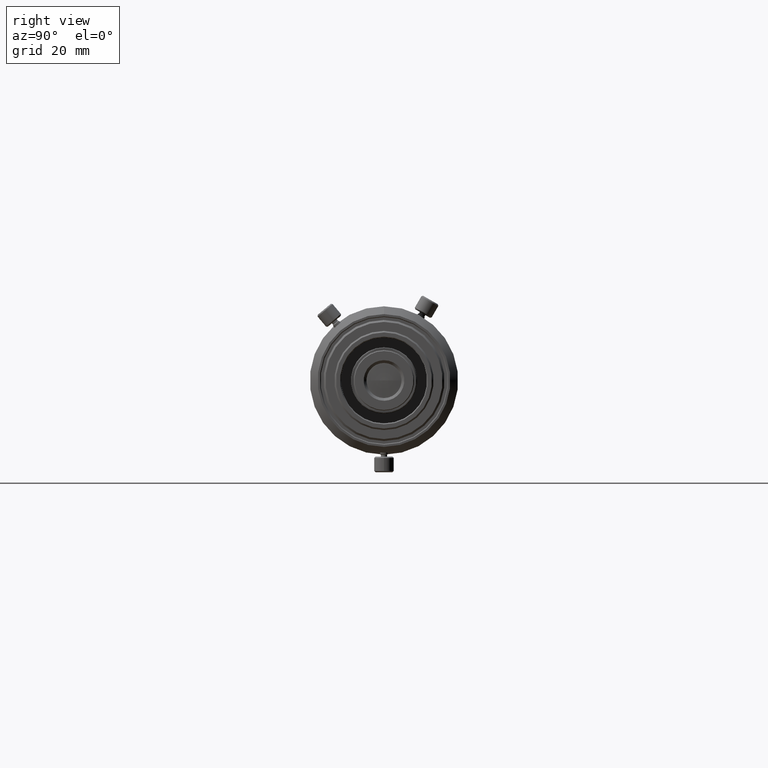
[diagram: clean part render]
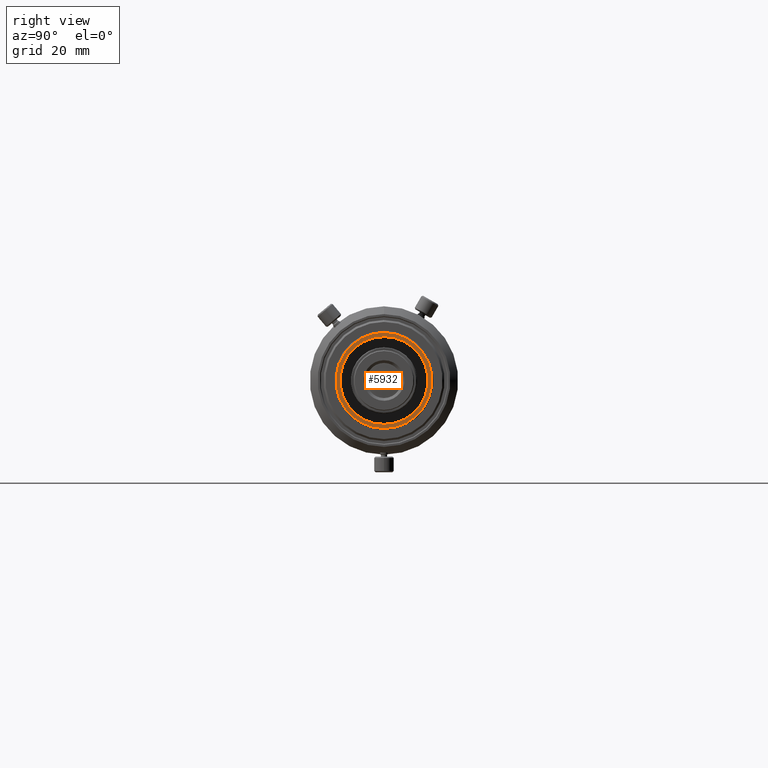
[diagram: same view with one face highlighted and labeled with its STEP entity id]
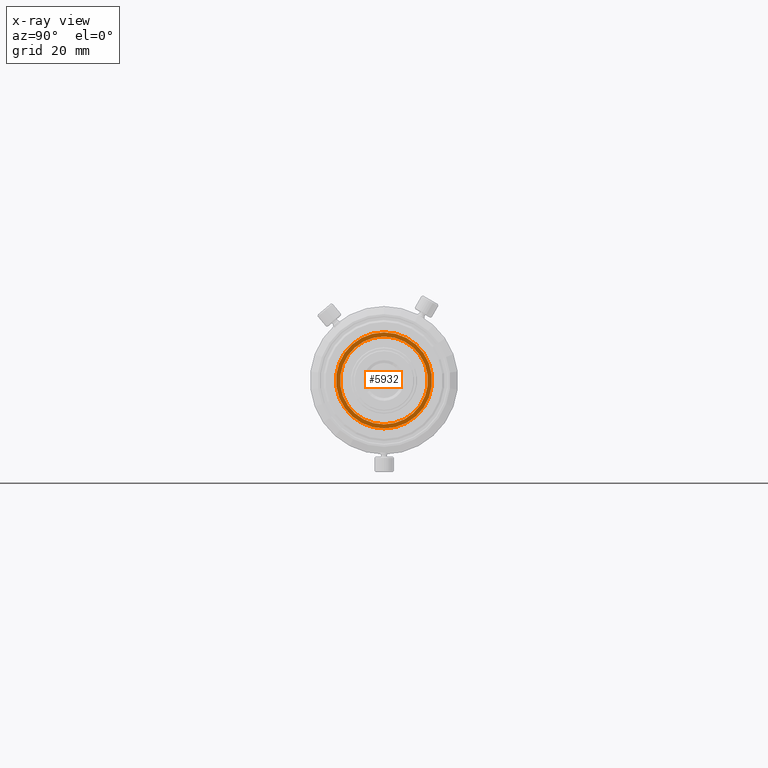
[diagram: x-ray of the same camera — body ghosted, the highlighted face saturated]
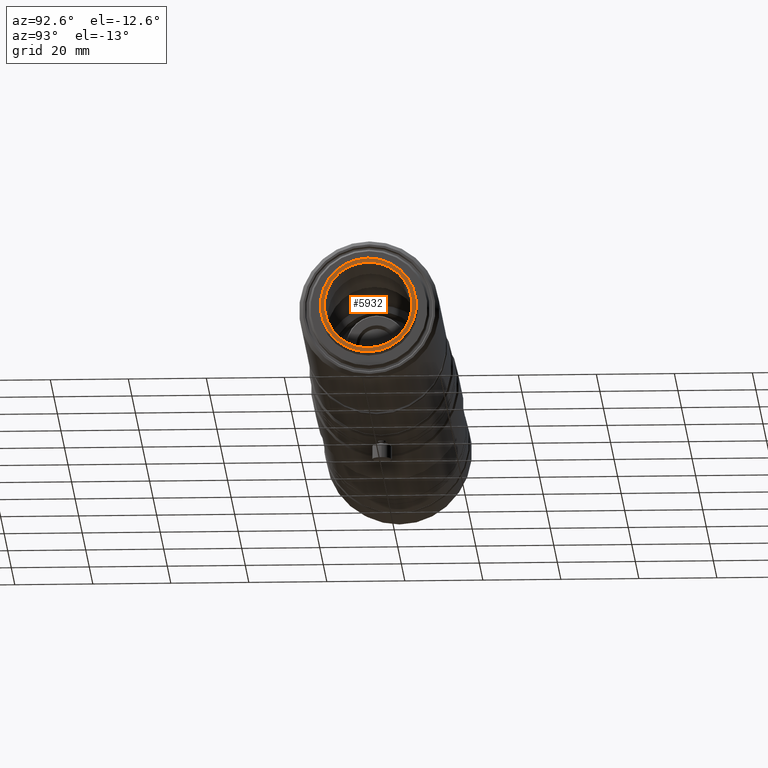
[diagram: same view with one face highlighted and labeled with its STEP entity id]
A machine part, right view. The second image highlights one B-rep face of the part: STEP entity #5932.
The next image is the same camera in x-ray: the body ghosted, the highlighted face saturated — about 0% of this face is hidden behind the body in this view.
A second angle (auxiliary view) of the same face is appended — the face is thin or edge-on in the first view.
In plain terms, the highlighted planar face has unit normal (1, 0, -0).
Its self-contained STEP definition (entity closure, byte-faithful):
#110 = ORIENTED_EDGE ( 'NONE', *, *, #4001, .T. ) ;
#446 = ORIENTED_EDGE ( 'NONE', *, *, #5785, .T. ) ;
#447 = ORIENTED_EDGE ( 'NONE', *, *, #5796, .F. ) ;
#448 = ORIENTED_EDGE ( 'NONE', *, *, #3995, .F. ) ;
#496 = VERTEX_POINT ( 'NONE', #4622 ) ;
#502 = VERTEX_POINT ( 'NONE', #4616 ) ;
#503 = VERTEX_POINT ( 'NONE', #4725 ) ;
#514 = VERTEX_POINT ( 'NONE', #4594 ) ;
#668 = CIRCLE ( 'NONE', #5849, 11.25000000000007100 ) ;
#679 = CIRCLE ( 'NONE', #5851, 12.30300000000006800 ) ;
#2237 = CIRCLE ( 'NONE', #4228, 12.30300000000006800 ) ;
#2247 = CIRCLE ( 'NONE', #4238, 11.25000000000007100 ) ;
#2299 = FACE_OUTER_BOUND ( 'NONE', #5500, .T. ) ;
#2305 = FACE_BOUND ( 'NONE', #5568, .T. ) ;
#2683 = CARTESIAN_POINT ( 'NONE',  ( -13.52600000000001000, 0.0000000000000000000, 0.0000000000000000000 ) ) ;
#2684 = DIRECTION ( 'NONE',  ( 1.000000000000000000, -0.0000000000000000000, -0.0000000000000000000 ) ) ;
#2685 = DIRECTION ( 'NONE',  ( 0.0000000000000000000, 0.0000000000000000000, -1.000000000000000000 ) ) ;
#2731 = CARTESIAN_POINT ( 'NONE',  ( -13.52600000000001000, 0.0000000000000000000, 0.0000000000000000000 ) ) ;
#2732 = DIRECTION ( 'NONE',  ( 1.000000000000000000, -0.0000000000000000000, -0.0000000000000000000 ) ) ;
#2733 = DIRECTION ( 'NONE',  ( 0.0000000000000000000, 0.0000000000000000000, -1.000000000000000000 ) ) ;
#2876 = PLANE ( 'NONE',  #4285 ) ;
#2877 = CARTESIAN_POINT ( 'NONE',  ( -13.52600000000001000, 0.0000000000000000000, 0.0000000000000000000 ) ) ;
#2882 = DIRECTION ( 'NONE',  ( 1.000000000000000000, 0.0000000000000000000, -0.0000000000000000000 ) ) ;
#2883 = DIRECTION ( 'NONE',  ( -0.0000000000000000000, 0.0000000000000000000, -1.000000000000000000 ) ) ;
#3995 = EDGE_CURVE ( 'NONE', #502, #514, #668, .T. ) ;
#4001 = EDGE_CURVE ( 'NONE', #496, #503, #679, .T. ) ;
#4228 = AXIS2_PLACEMENT_3D ( 'NONE', #2683, #2684, #2685 ) ;
#4238 = AXIS2_PLACEMENT_3D ( 'NONE', #2731, #2732, #2733 ) ;
#4285 = AXIS2_PLACEMENT_3D ( 'NONE', #2877, #2882, #2883 ) ;
#4458 = DIRECTION ( 'NONE',  ( 1.000000000000000000, -0.0000000000000000000, -0.0000000000000000000 ) ) ;
#4460 = DIRECTION ( 'NONE',  ( 0.0000000000000000000, 0.0000000000000000000, -1.000000000000000000 ) ) ;
#4462 = CARTESIAN_POINT ( 'NONE',  ( -13.52600000000001000, 0.0000000000000000000, 0.0000000000000000000 ) ) ;
#4466 = DIRECTION ( 'NONE',  ( 1.000000000000000000, -0.0000000000000000000, -0.0000000000000000000 ) ) ;
#4470 = CARTESIAN_POINT ( 'NONE',  ( -13.52600000000001000, 0.0000000000000000000, 0.0000000000000000000 ) ) ;
#4471 = DIRECTION ( 'NONE',  ( 0.0000000000000000000, 0.0000000000000000000, -1.000000000000000000 ) ) ;
#4594 = CARTESIAN_POINT ( 'NONE',  ( -13.52600000000001000, 0.0000000000000000000, -11.25000000000007100 ) ) ;
#4616 = CARTESIAN_POINT ( 'NONE',  ( -13.52600000000001000, 1.377727649040781100E-015, 11.25000000000007100 ) ) ;
#4622 = CARTESIAN_POINT ( 'NONE',  ( -13.52600000000001000, 1.530992195954072300E-015, -12.30300000000006800 ) ) ;
#4725 = CARTESIAN_POINT ( 'NONE',  ( -13.52600000000001000, 0.0000000000000000000, 12.30300000000006800 ) ) ;
#5500 = EDGE_LOOP ( 'NONE', ( #446, #110 ) ) ;
#5568 = EDGE_LOOP ( 'NONE', ( #447, #448 ) ) ;
#5785 = EDGE_CURVE ( 'NONE', #503, #496, #2237, .T. ) ;
#5796 = EDGE_CURVE ( 'NONE', #514, #502, #2247, .T. ) ;
#5849 = AXIS2_PLACEMENT_3D ( 'NONE', #4470, #4466, #4471 ) ;
#5851 = AXIS2_PLACEMENT_3D ( 'NONE', #4462, #4458, #4460 ) ;
#5932 = ADVANCED_FACE ( 'NONE', ( #2299, #2305 ), #2876, .T. ) ;